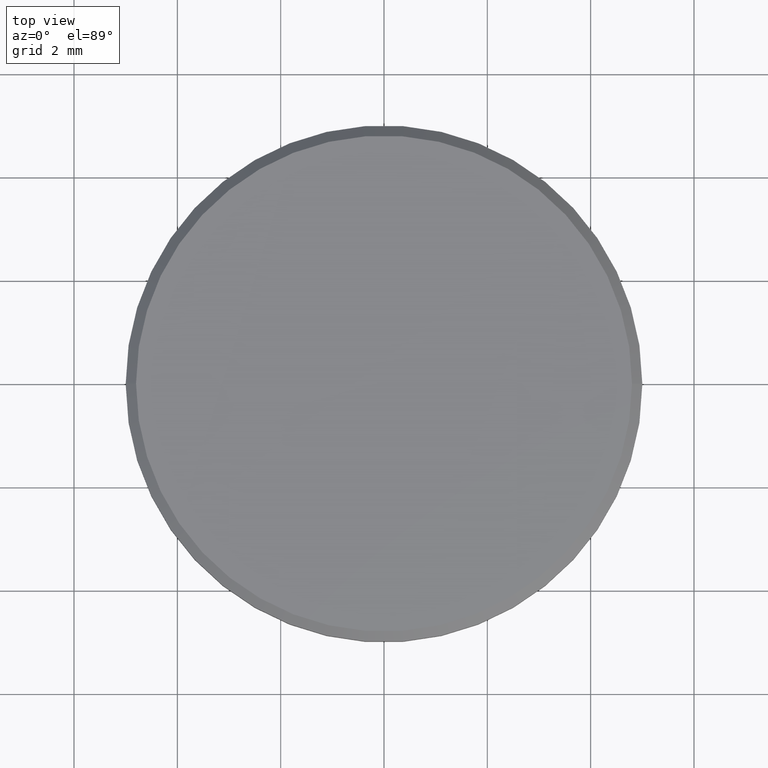
[diagram: clean part render]
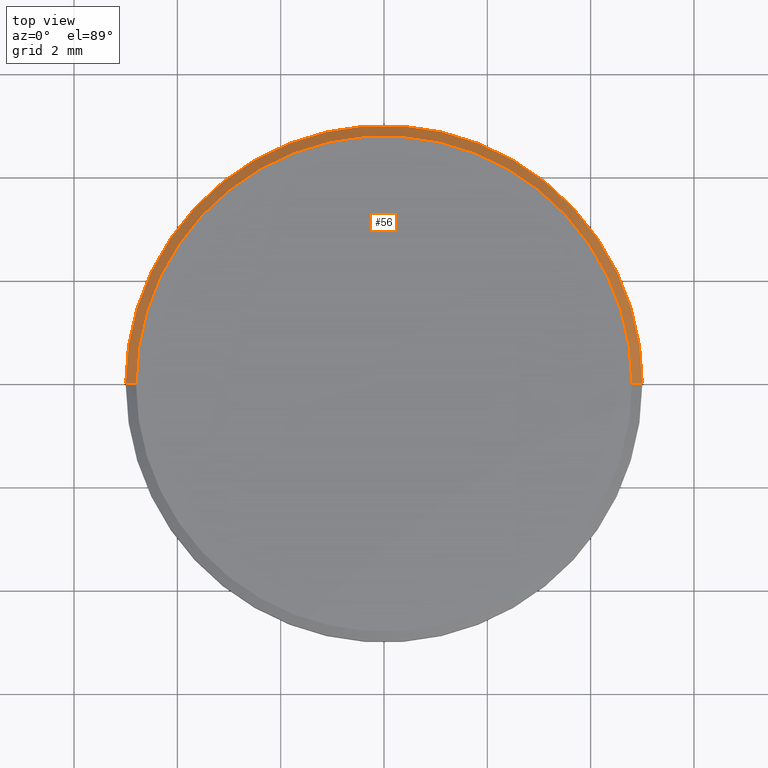
[diagram: same view with one face highlighted and labeled with its STEP entity id]
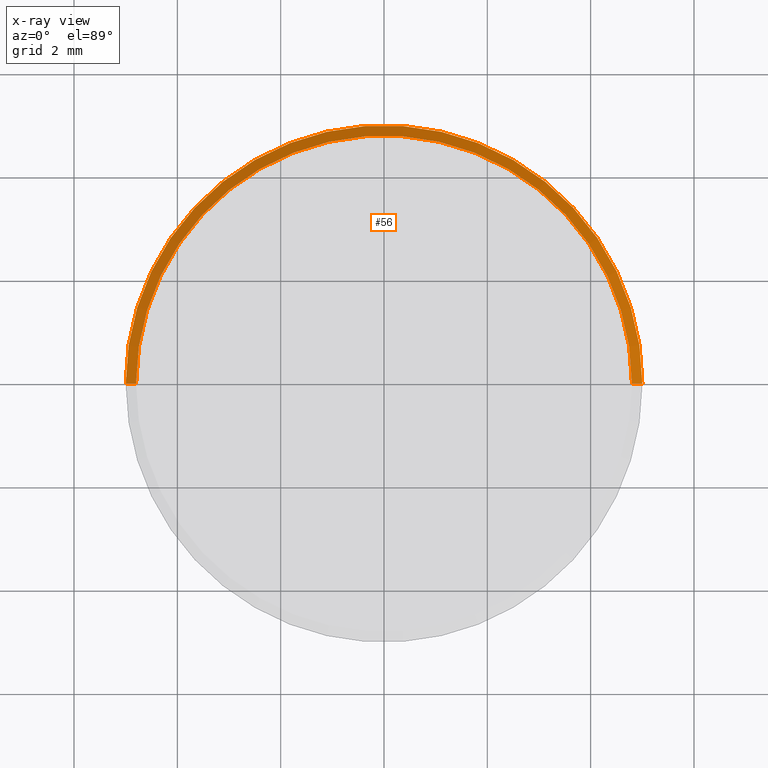
[diagram: x-ray of the same camera — body ghosted, the highlighted face saturated]
A machine part, top view. The second image highlights one B-rep face of the part: STEP entity #56.
The next image is the same camera in x-ray: the body ghosted, the highlighted face saturated — about 0% of this face is hidden behind the body in this view.
In plain terms, the highlighted conical surface has half-angle 45 deg.
Its self-contained STEP definition (entity closure, byte-faithful):
#3 = CARTESIAN_POINT ( 'NONE',  ( 0.000000000000000000, 0.000000000000000000, 1.000000000000000000 ) ) ;
#6 = EDGE_CURVE ( 'NONE', #205, #144, #240, .T. ) ;
#12 = CIRCLE ( 'NONE', #97, 5.000000000000000000 ) ;
#24 = EDGE_CURVE ( 'NONE', #169, #203, #116, .T. ) ;
#45 = DIRECTION ( 'NONE',  ( 0.000000000000000000, 0.000000000000000000, -1.000000000000000000 ) ) ;
#53 = ORIENTED_EDGE ( 'NONE', *, *, #24, .F. ) ;
#54 = VECTOR ( 'NONE', #160, 1000.000000000000114 ) ;
#56 = ADVANCED_FACE ( 'NONE', ( #175 ), #76, .T. ) ;
#68 = CARTESIAN_POINT ( 'NONE',  ( -4.800000000000002487, 0.000000000000000000, 1.000000000000000000 ) ) ;
#70 = ORIENTED_EDGE ( 'NONE', *, *, #198, .F. ) ;
#73 = CARTESIAN_POINT ( 'NONE',  ( 4.800000000000002487, 6.000769315822031726E-16, 1.000000000000000000 ) ) ;
#75 = DIRECTION ( 'NONE',  ( 1.000000000000000000, 0.000000000000000000, 0.000000000000000000 ) ) ;
#76 = CONICAL_SURFACE ( 'NONE', #213, 4.800000000000002487, 0.7853981633974461696 ) ;
#93 = DIRECTION ( 'NONE',  ( 0.000000000000000000, 0.000000000000000000, 1.000000000000000000 ) ) ;
#95 = CARTESIAN_POINT ( 'NONE',  ( -5.000000000000000000, 0.000000000000000000, 0.8000000000000012657 ) ) ;
#97 = AXIS2_PLACEMENT_3D ( 'NONE', #211, #45, #197 ) ;
#104 = CARTESIAN_POINT ( 'NONE',  ( 5.000000000000000000, 6.123233995736766282E-16, 0.8000000000000012657 ) ) ;
#108 = ORIENTED_EDGE ( 'NONE', *, *, #128, .F. ) ;
#116 = LINE ( 'NONE', #234, #54 ) ;
#128 = EDGE_CURVE ( 'NONE', #203, #144, #12, .T. ) ;
#129 = AXIS2_PLACEMENT_3D ( 'NONE', #3, #93, #75 ) ;
#139 = CARTESIAN_POINT ( 'NONE',  ( 4.800000000000002487, 5.878304635907297169E-16, 1.000000000000000000 ) ) ;
#140 = CARTESIAN_POINT ( 'NONE',  ( 0.000000000000000000, 0.000000000000000000, 1.000000000000000000 ) ) ;
#143 = DIRECTION ( 'NONE',  ( 0.000000000000000000, 0.000000000000000000, -1.000000000000000000 ) ) ;
#144 = VERTEX_POINT ( 'NONE', #104 ) ;
#148 = CIRCLE ( 'NONE', #129, 4.800000000000002487 ) ;
#153 = VECTOR ( 'NONE', #217, 1000.000000000000114 ) ;
#156 = DIRECTION ( 'NONE',  ( -1.000000000000000000, 0.000000000000000000, 0.000000000000000000 ) ) ;
#158 = ORIENTED_EDGE ( 'NONE', *, *, #6, .T. ) ;
#160 = DIRECTION ( 'NONE',  ( -0.7071067811865460184, 0.000000000000000000, -0.7071067811865489050 ) ) ;
#169 = VERTEX_POINT ( 'NONE', #68 ) ;
#175 = FACE_OUTER_BOUND ( 'NONE', #200, .T. ) ;
#197 = DIRECTION ( 'NONE',  ( 1.000000000000000000, 0.000000000000000000, 0.000000000000000000 ) ) ;
#198 = EDGE_CURVE ( 'NONE', #205, #169, #148, .T. ) ;
#200 = EDGE_LOOP ( 'NONE', ( #70, #158, #108, #53 ) ) ;
#203 = VERTEX_POINT ( 'NONE', #95 ) ;
#205 = VERTEX_POINT ( 'NONE', #73 ) ;
#211 = CARTESIAN_POINT ( 'NONE',  ( 0.000000000000000000, 0.000000000000000000, 0.8000000000000012657 ) ) ;
#213 = AXIS2_PLACEMENT_3D ( 'NONE', #140, #143, #156 ) ;
#217 = DIRECTION ( 'NONE',  ( 0.7071067811865460184, 8.659560562354913137E-17, -0.7071067811865489050 ) ) ;
#234 = CARTESIAN_POINT ( 'NONE',  ( -4.800000000000002487, 0.000000000000000000, 1.000000000000000000 ) ) ;
#240 = LINE ( 'NONE', #139, #153 ) ;